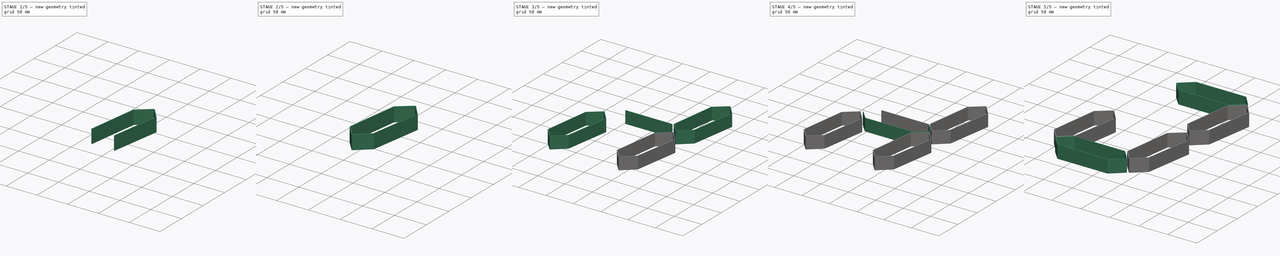
[diagram: build sequence overview — one tinted view per stage of 5, left to right]
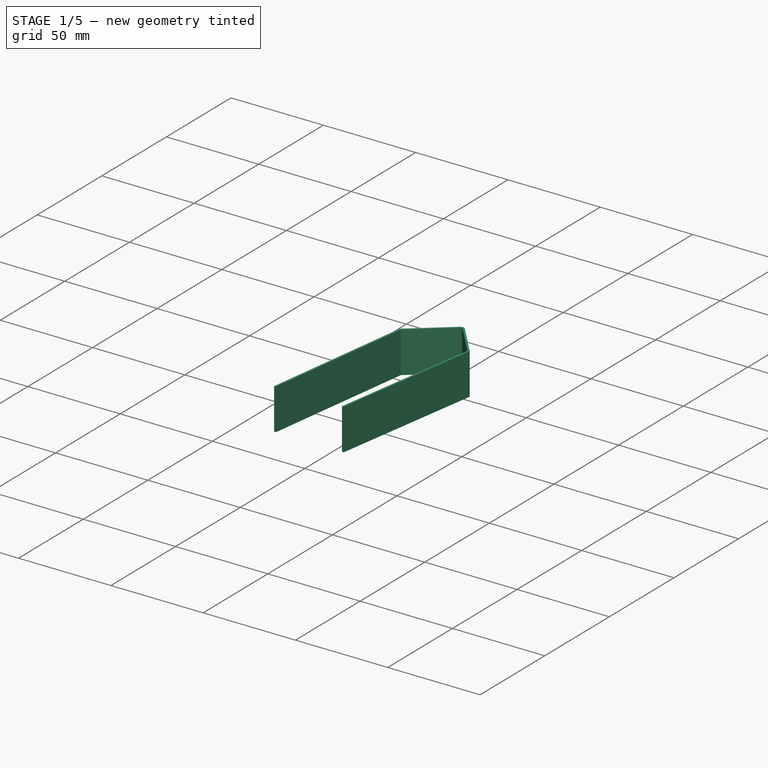
[diagram: stage 1 of 5 — iso view after this stage's code; geometry added in this stage tinted green]
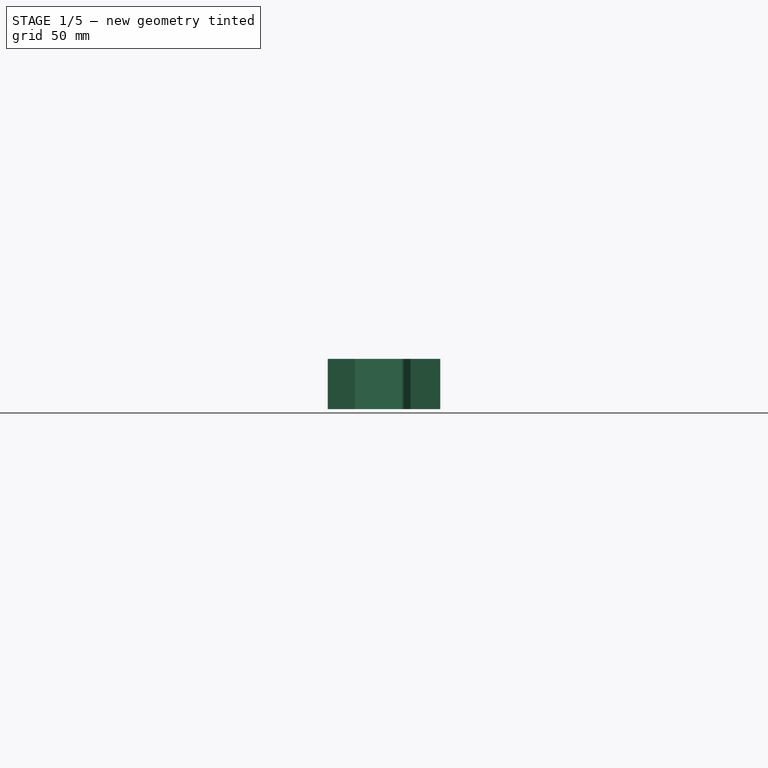
[diagram: stage 1 of 5 — front view after this stage's code; geometry added in this stage tinted green]
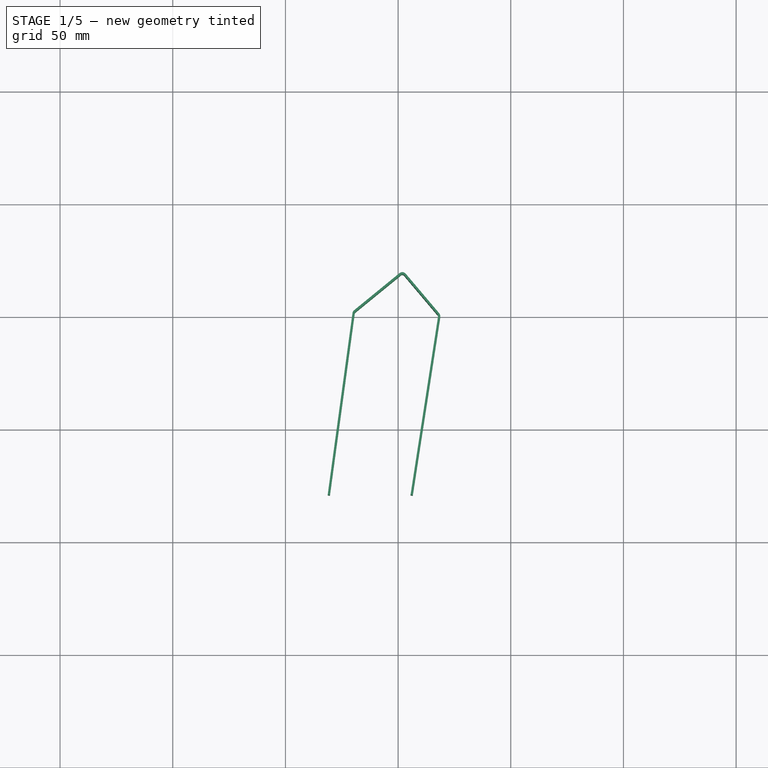
[diagram: stage 1 of 5 — top view after this stage's code; geometry added in this stage tinted green]
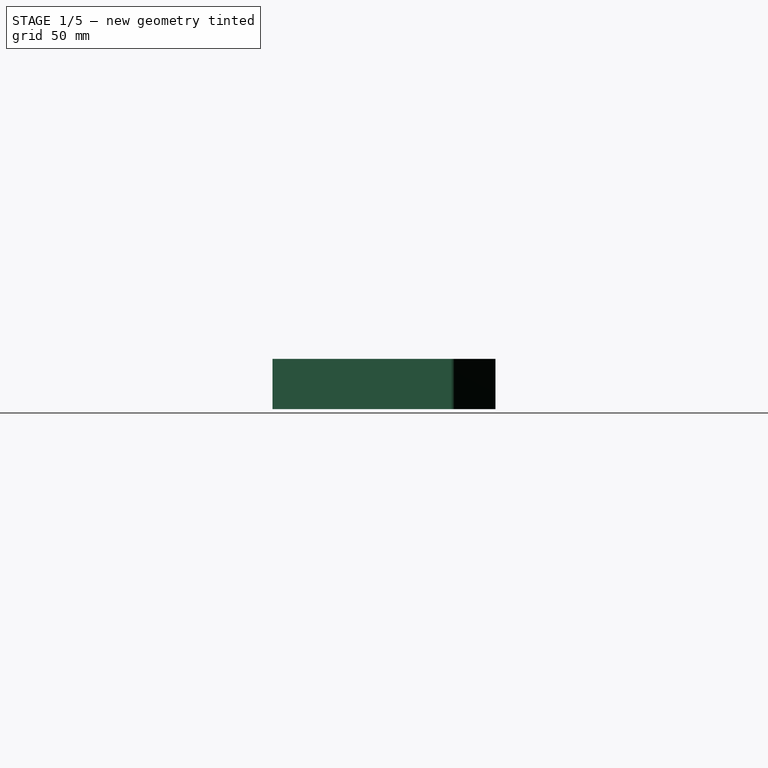
[diagram: stage 1 of 5 — right view after this stage's code; geometry added in this stage tinted green]
FCSTD DOCUMENT  (FreeCAD 0.19R17421 +113 (Git))
Label: afficheur2
License: All rights reserved
LicenseURL: http://en.wikipedia.org/wiki/All_rights_reserved
objects: PartDesign::FeaturePython×12, PartDesign::Body×7, PartDesign::FeatureBase×5, Part::Feature×3, Sketcher::SketchObject×2, PartDesign::Pad×2, App::DocumentObjectGroup×2, Image::ImagePlane×1
note: 33 computed .brp shape members not serialized (recipe doc carries the construction recipe); baked Part::Feature solids carry a one-line shape summary decoded from their .brp

FEATURE [PartDesign::Body] Body002  label="B"
  BaseFeature = -> Bend005
  Group = -> [Clone002]
  Origin = -> Origin002
  Tip = -> Clone002
FEATURE [App::DocumentObjectGroup] Group  label="Horizontal grp"
  Group = -> [Body,Body001,Body002]
FEATURE [Sketcher::SketchObject] Sketch001
  MapMode = 5
  Support = -> [XY_Plane003]
  sketch-geometry (4):
    g0: LineSegment StartX=-70.2446 StartY=101.535 StartZ=0 EndX=-69.2538 EndY=101.4 EndZ=0
    g1: LineSegment StartX=-69.2538 StartY=101.4 StartZ=0 EndX=-80.2521 EndY=20.8003 EndZ=0
    g2: LineSegment StartX=-80.2521 StartY=20.8003 StartZ=0 EndX=-81.2429 EndY=20.9355 EndZ=0
    g3: LineSegment StartX=-81.2429 StartY=20.9355 StartZ=0 EndX=-70.2446 EndY=101.535 EndZ=0
  constraints (8):
    c: Coincident(g0,g1)
    c: Coincident(g1,g2)
    c: Coincident(g2,g3)
    c: Coincident(g3,g0)
    c: Equal(g1,g3)
    c: Angle(g3,g0) = 1.5708
    c: Equal(g0,g2)
    c: Distance(g0) = 1
FEATURE [PartDesign::Pad] Pad002
  Length = 22.3
  Length2 = 100
  Profile = -> Sketch001
  Type = 0
FEATURE [PartDesign::FeaturePython] Bend006  # WARN: FeaturePython — macro-defined, semantics opaque (R4)
  AutoMiter = true
  BaseFeature = -> Pad002
  BendType = 0
  LengthList = [26]
  ReliefFactor = 0.7
  UseReliefFactor = false
  angle = 43
  baseObject = -> Pad002 [Face1]
  bendAList = [43]
  extend1 = 0
  extend2 = 0
  gap1 = 0
  gap2 = 0
  invert = false
  kfactor = 0.5
  length = 26
  miterangle1 = 0
  miterangle2 = 0
  offset = 0
  radius = 1
  reliefType = 0
  reliefd = 1
  reliefw = 0.8
  sketchflip = false
  sketchinvert = false
  unfold = false
FEATURE [PartDesign::FeaturePython] Bend007  # WARN: FeaturePython — macro-defined, semantics opaque (R4)
  AutoMiter = true
  BaseFeature = -> Bend006
  BendType = 0
  LengthList = [23]
  ReliefFactor = 0.7
  UseReliefFactor = false
  angle = 89
  baseObject = -> Bend006 [Face3]
  bendAList = [89]
  extend1 = 0
  extend2 = 0
  gap1 = 0
  gap2 = 0
  invert = false
  kfactor = 0.5
  length = 23
  miterangle1 = 0
  miterangle2 = 0
  offset = 0
  radius = 1
  reliefType = 0
  reliefd = 1
  reliefw = 0.8
  sketchflip = false
  sketchinvert = false
  unfold = false
FEATURE [PartDesign::FeaturePython] Bend008  # WARN: FeaturePython — macro-defined, semantics opaque (R4)
  AutoMiter = true
  BaseFeature = -> Bend007
  BendType = 0
  LengthList = [80]
  ReliefFactor = 0.7
  UseReliefFactor = false
  angle = 49
  baseObject = -> Bend007 [Face3]
  bendAList = [49]
  extend1 = 0
  extend2 = 0
  gap1 = 0
  gap2 = 0
  invert = false
  kfactor = 0.5
  length = 80
  miterangle1 = 0
  miterangle2 = 0
  offset = 0
  radius = 1
  reliefType = 0
  reliefd = 1
  reliefw = 0.8
  sketchflip = false
  sketchinvert = false
  unfold = false
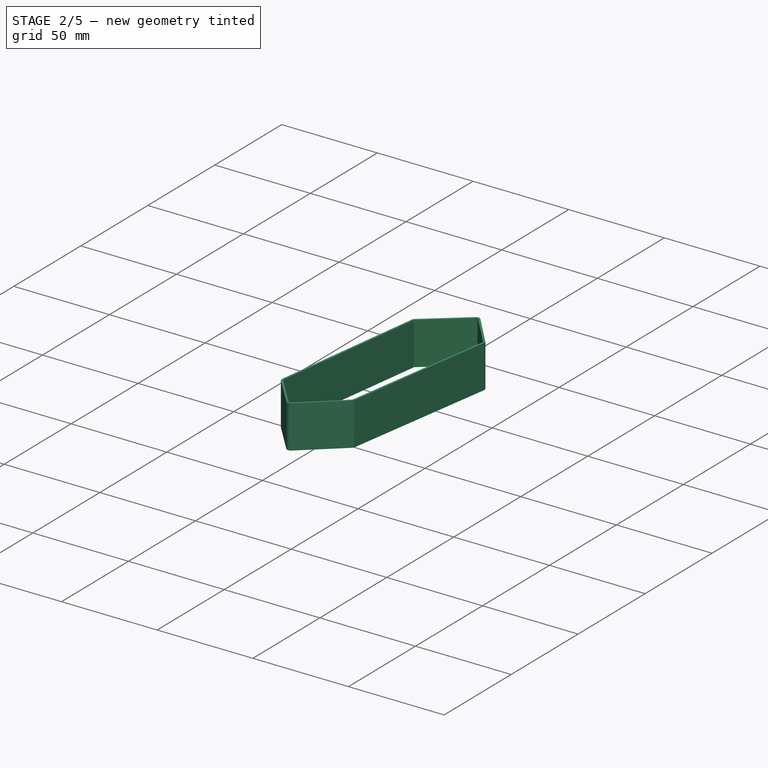
[diagram: stage 2 of 5 — iso view after this stage's code; geometry added in this stage tinted green]
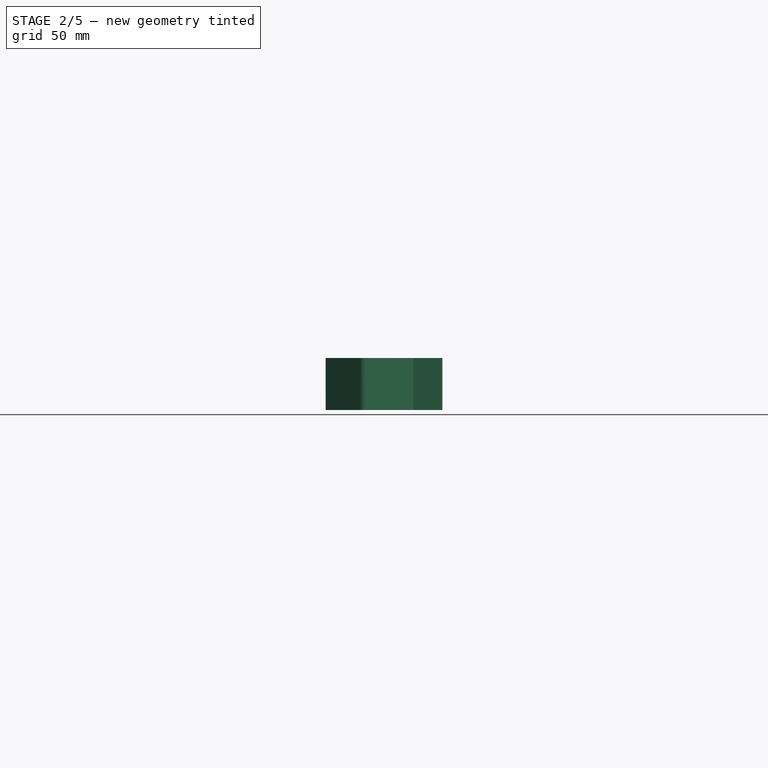
[diagram: stage 2 of 5 — front view after this stage's code; geometry added in this stage tinted green]
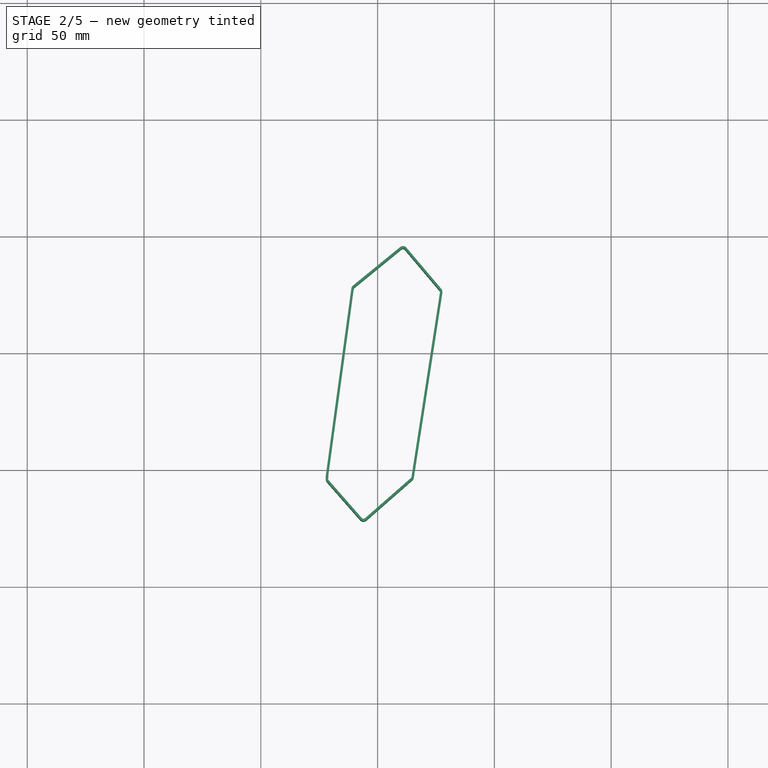
[diagram: stage 2 of 5 — top view after this stage's code; geometry added in this stage tinted green]
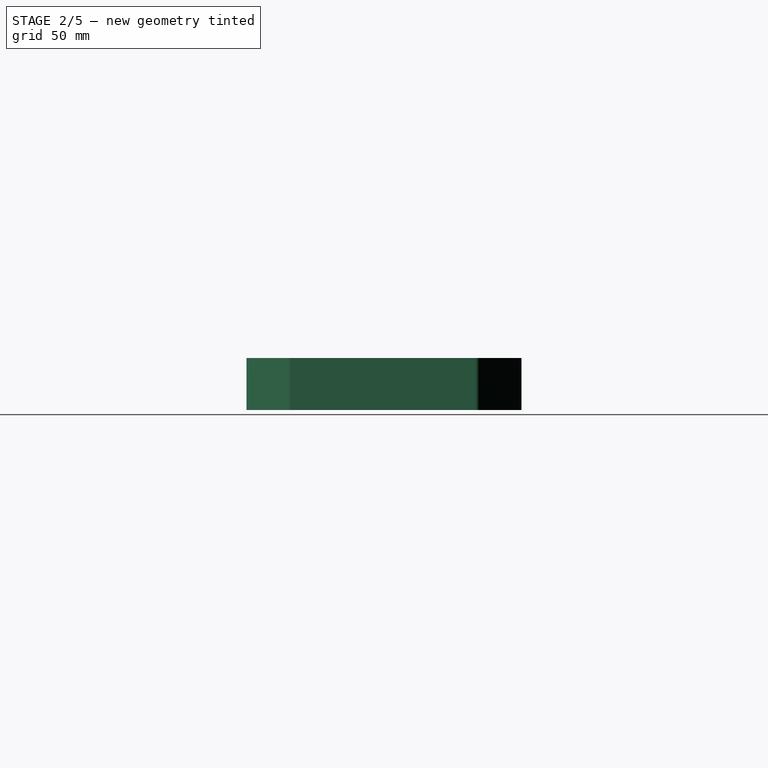
[diagram: stage 2 of 5 — right view after this stage's code; geometry added in this stage tinted green]
FEATURE [PartDesign::FeaturePython] Bend009  # WARN: FeaturePython — macro-defined, semantics opaque (R4)
  AutoMiter = true
  BaseFeature = -> Bend008
  BendType = 0
  LengthList = [26]
  ReliefFactor = 0.7
  UseReliefFactor = false
  angle = 40
  baseObject = -> Bend008 [Face3]
  bendAList = [40]
  extend1 = 0
  extend2 = 0
  gap1 = 0
  gap2 = 0
  invert = false
  kfactor = 0.5
  length = 26
  miterangle1 = 0
  miterangle2 = 0
  offset = 0
  radius = 1
  reliefType = 0
  reliefd = 1
  reliefw = 0.8
  sketchflip = false
  sketchinvert = false
  unfold = false
FEATURE [PartDesign::FeaturePython] Bend010  # WARN: FeaturePython — macro-defined, semantics opaque (R4)
  AutoMiter = true
  BaseFeature = -> Bend009
  BendType = 0
  LengthList = [21.5]
  ReliefFactor = 0.7
  UseReliefFactor = false
  angle = 90
  baseObject = -> Bend009 [Face3]
  bendAList = [90]
  extend1 = 0
  extend2 = 0
  gap1 = 0
  gap2 = 0
  invert = false
  kfactor = 0.5
  length = 21.5
  miterangle1 = 0
  miterangle2 = 0
  offset = 0
  radius = 1
  reliefType = 0
  reliefd = 1
  reliefw = 0.8
  sketchflip = false
  sketchinvert = false
  unfold = false
FEATURE [PartDesign::FeaturePython] Bend011  # WARN: FeaturePython — macro-defined, semantics opaque (R4)
  AutoMiter = true
  BaseFeature = -> Bend010
  BendType = 0
  LengthList = [1]
  ReliefFactor = 0.7
  UseReliefFactor = false
  angle = 48
  baseObject = -> Bend010 [Face3]
  bendAList = [48]
  extend1 = 0
  extend2 = 0
  gap1 = 0
  gap2 = 0
  invert = false
  kfactor = 0.5
  length = 1
  miterangle1 = 0
  miterangle2 = 0
  offset = 0
  radius = 1
  reliefType = 0
  reliefd = 1
  reliefw = 0.8
  sketchflip = false
  sketchinvert = false
  unfold = false
FEATURE [PartDesign::Body] Body005  label="BG"
  BaseFeature = -> Body003
  Group = -> [Clone004]
  Origin = -> Origin005
  Tip = -> Clone004
FEATURE [PartDesign::FeatureBase] Clone005
  BaseFeature = -> Body003
  Placement = pos=(109,-124,0) rot=(0,0,1;0rad)
FEATURE [PartDesign::Body] Body006  label="BD"
  BaseFeature = -> Body003
  Group = -> [Clone005]
  Origin = -> Origin006
  Tip = -> Clone005
FEATURE [App::DocumentObjectGroup] Group001  label="Vertical grp"
  Group = -> [Body003,Body004,Body005,Body006]
FEATURE [Part::Feature] FailedFace20_
  shape: bbox 3e-07 x 0.9885 x 22.3 mm, 1 faces, 0 solids (baked)
FEATURE [Part::Feature] FailedFace11_
  shape: bbox 0.08959 x 0.1031 x 22.3 mm, 1 faces, 0 solids (baked)
FEATURE [Part::Feature] FailedFace11_001
  shape: bbox 0.08959 x 0.1031 x 22.3 mm, 1 faces, 0 solids (baked)
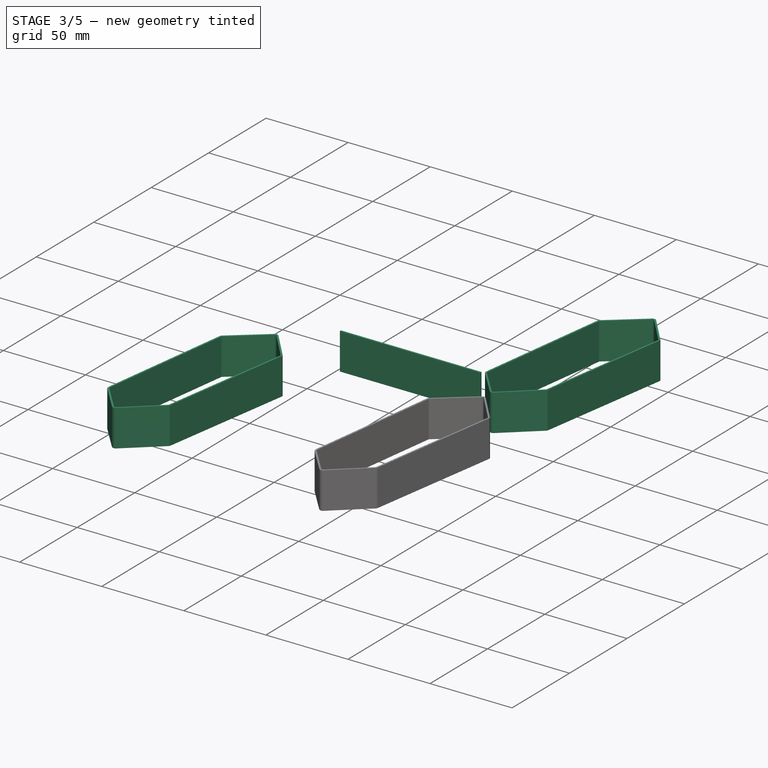
[diagram: stage 3 of 5 — iso view after this stage's code; geometry added in this stage tinted green]
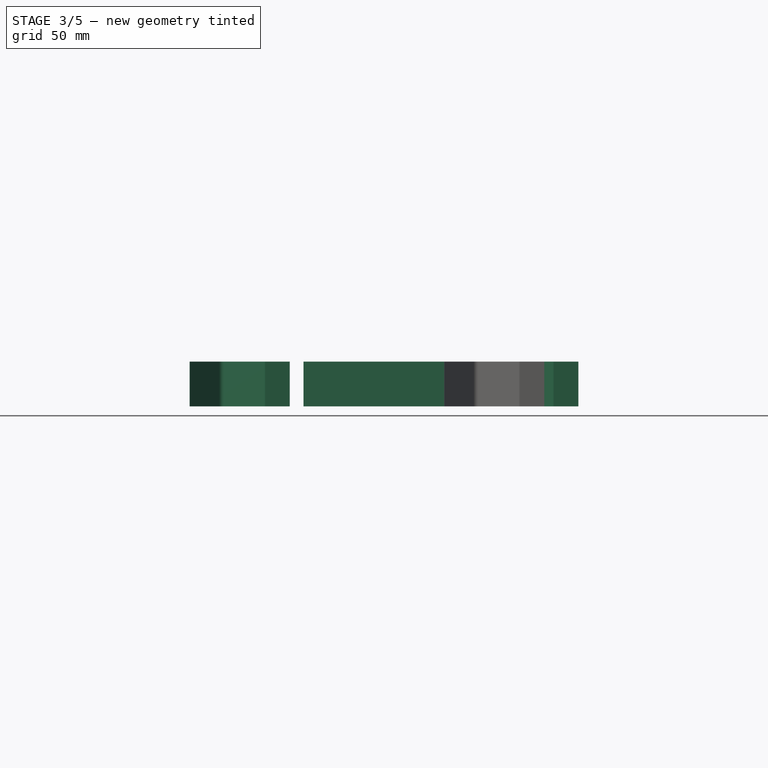
[diagram: stage 3 of 5 — front view after this stage's code; geometry added in this stage tinted green]
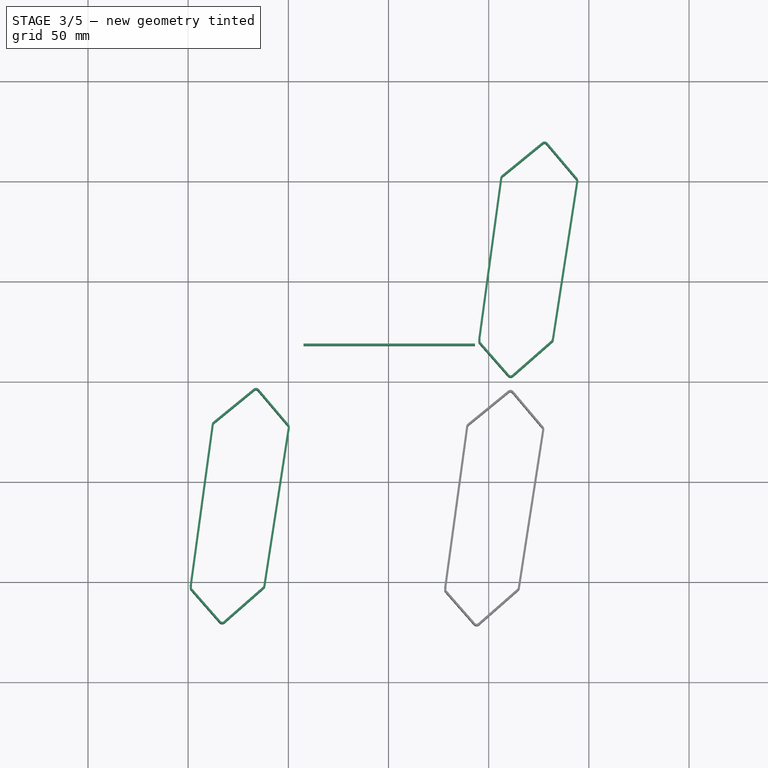
[diagram: stage 3 of 5 — top view after this stage's code; geometry added in this stage tinted green]
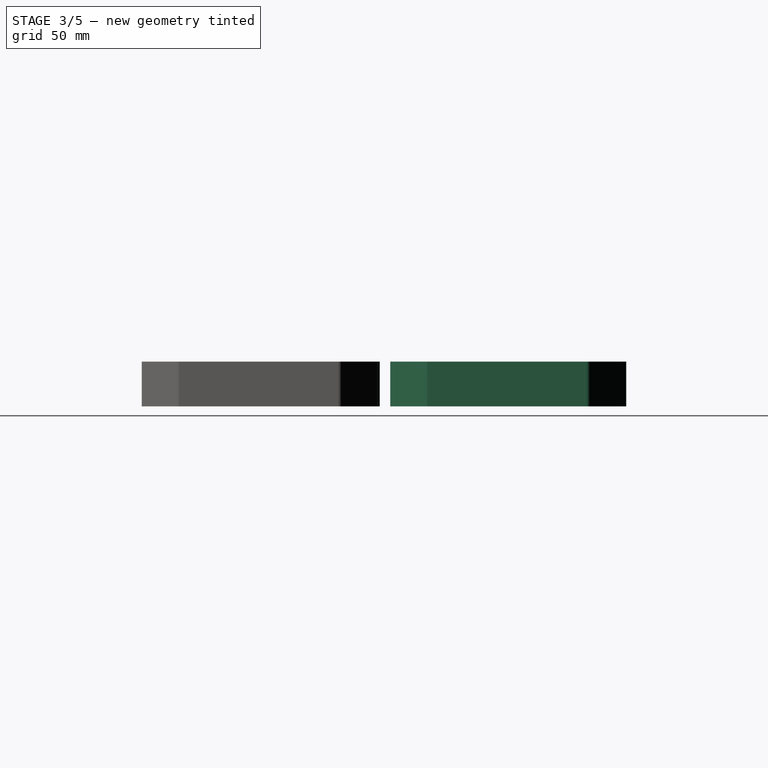
[diagram: stage 3 of 5 — right view after this stage's code; geometry added in this stage tinted green]
FEATURE [Image::ImagePlane] ImagePlane
  XSize = 210
  YSize = 297
FEATURE [Sketcher::SketchObject] Sketch
  MapMode = 5
  Support = -> [XY_Plane]
  sketch-geometry (4):
    g0: LineSegment StartX=-42.4215 StartY=18.8432 StartZ=0 EndX=43.15 EndY=18.8432 EndZ=0
    g1: LineSegment StartX=43.15 StartY=18.8432 StartZ=0 EndX=43.15 EndY=17.8432 EndZ=0
    g2: LineSegment StartX=43.15 StartY=17.8432 StartZ=0 EndX=-42.4215 EndY=17.8432 EndZ=0
    g3: LineSegment StartX=-42.4215 StartY=17.8432 StartZ=0 EndX=-42.4215 EndY=18.8432 EndZ=0
  constraints (9):
    c: Coincident(g0,g1)
    c: Coincident(g1,g2)
    c: Coincident(g2,g3)
    c: Coincident(g3,g0)
    c: Horizontal(g0)
    c: Horizontal(g2)
    c: Vertical(g1)
    c: Vertical(g3)
    c: DistanceY(g1,g1) = 1
FEATURE [PartDesign::Pad] Pad001
  Length = 22.3
  Length2 = 100
  Profile = -> Sketch
  Type = 0
FEATURE [PartDesign::Body] Body003  label="HG"
  Group = -> [Sketch001,Pad002,Bend006,Bend007,Bend008,Bend009,Bend010,Bend011]
  Origin = -> Origin003
  Tip = -> Bend011
FEATURE [PartDesign::FeatureBase] Clone003
  BaseFeature = -> Body003
  Placement = pos=(126,0,0) rot=(0,0,1;0rad)
FEATURE [PartDesign::Body] Body004  label="HD"
  BaseFeature = -> Body003
  Group = -> [Clone003]
  Origin = -> Origin004
  Tip = -> Clone003
FEATURE [PartDesign::FeatureBase] Clone004
  BaseFeature = -> Body003
  Placement = pos=(-18,-123,0) rot=(0,0,1;0rad)
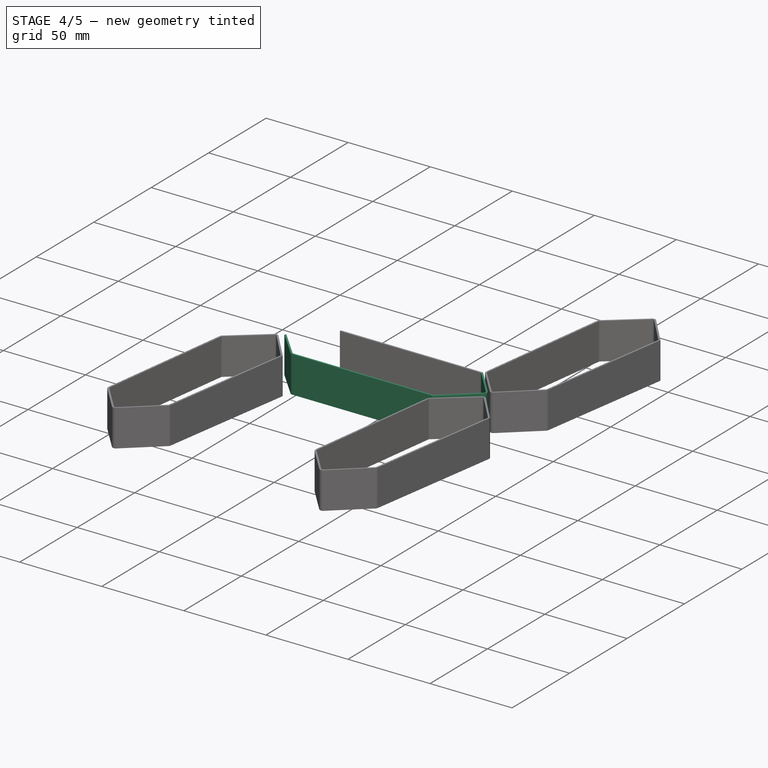
[diagram: stage 4 of 5 — iso view after this stage's code; geometry added in this stage tinted green]
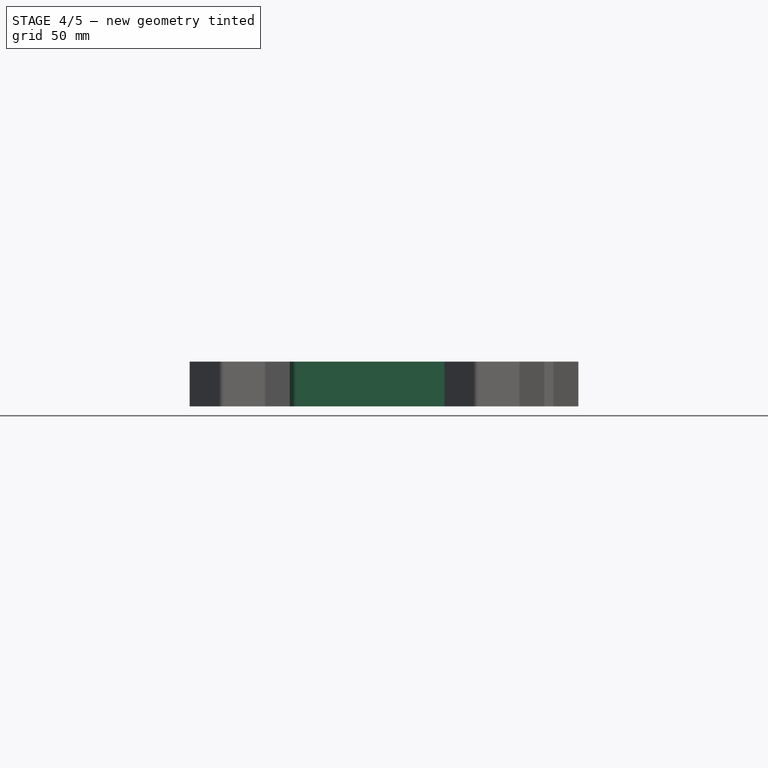
[diagram: stage 4 of 5 — front view after this stage's code; geometry added in this stage tinted green]
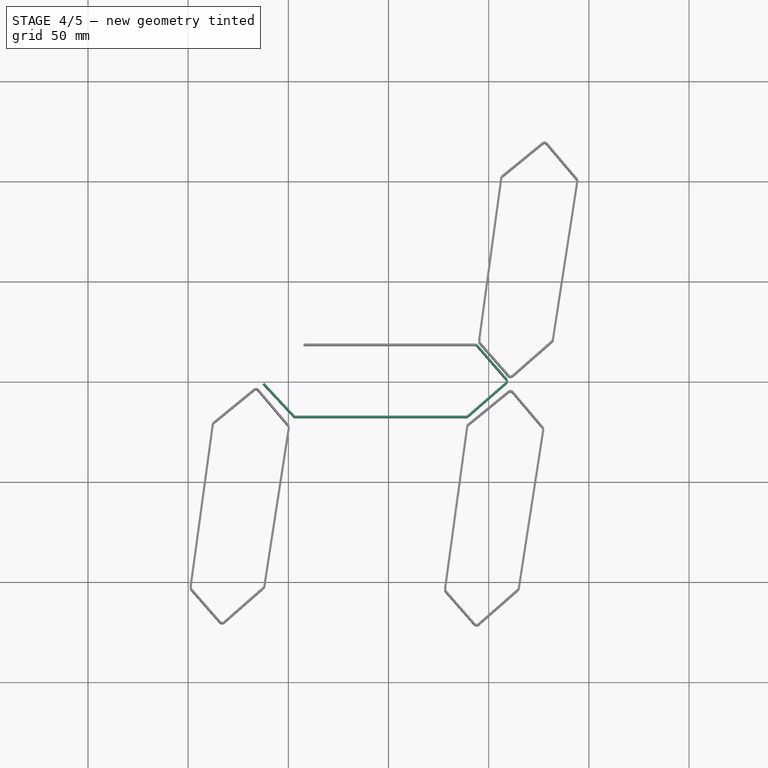
[diagram: stage 4 of 5 — top view after this stage's code; geometry added in this stage tinted green]
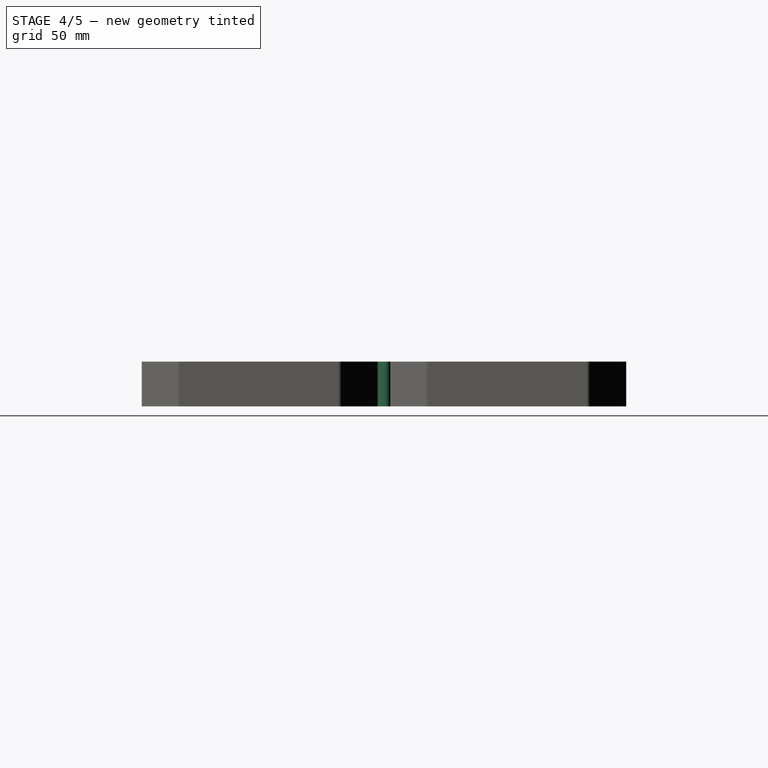
[diagram: stage 4 of 5 — right view after this stage's code; geometry added in this stage tinted green]
FEATURE [PartDesign::FeaturePython] Bend  # WARN: FeaturePython — macro-defined, semantics opaque (R4)
  AutoMiter = true
  BaseFeature = -> Pad001
  BendType = 0
  LengthList = [22]
  ReliefFactor = 0.7
  UseReliefFactor = false
  angle = 49
  baseObject = -> Pad001 [Face2]
  bendAList = [49]
  extend1 = 0
  extend2 = 0
  gap1 = 0
  gap2 = 0
  invert = false
  kfactor = 0.5
  length = 22
  miterangle1 = 0
  miterangle2 = 0
  offset = 0
  radius = 1
  reliefType = 0
  reliefd = 1
  reliefw = 0.8
  sketchflip = false
  sketchinvert = false
  unfold = false
FEATURE [PartDesign::FeaturePython] Bend001  # WARN: FeaturePython — macro-defined, semantics opaque (R4)
  AutoMiter = true
  BaseFeature = -> Bend
  BendType = 0
  LengthList = [25]
  ReliefFactor = 0.7
  UseReliefFactor = false
  angle = 90
  baseObject = -> Bend [Face3]
  bendAList = [90]
  extend1 = 0
  extend2 = 0
  gap1 = 0
  gap2 = 0
  invert = false
  kfactor = 0.5
  length = 25
  miterangle1 = 0
  miterangle2 = 0
  offset = 0
  radius = 1
  reliefType = 0
  reliefd = 1
  reliefw = 0.8
  sketchflip = false
  sketchinvert = false
  unfold = false
FEATURE [PartDesign::FeaturePython] Bend002  # WARN: FeaturePython — macro-defined, semantics opaque (R4)
  AutoMiter = true
  BaseFeature = -> Bend001
  BendType = 0
  LengthList = [85]
  ReliefFactor = 0.7
  UseReliefFactor = false
  angle = 41
  baseObject = -> Bend001 [Face3]
  bendAList = [41]
  extend1 = 0
  extend2 = 0
  gap1 = 0
  gap2 = 0
  invert = false
  kfactor = 0.5
  length = 85
  miterangle1 = 0
  miterangle2 = 0
  offset = 0
  radius = 1
  reliefType = 0
  reliefd = 1
  reliefw = 0.8
  sketchflip = false
  sketchinvert = false
  unfold = false
FEATURE [PartDesign::FeaturePython] Bend003  # WARN: FeaturePython — macro-defined, semantics opaque (R4)
  AutoMiter = true
  BaseFeature = -> Bend002
  BendType = 0
  LengthList = [22]
  ReliefFactor = 0.7
  UseReliefFactor = false
  angle = 47
  baseObject = -> Bend002 [Face3]
  bendAList = [47]
  extend1 = 0
  extend2 = 0
  gap1 = 0
  gap2 = 0
  invert = false
  kfactor = 0.5
  length = 22
  miterangle1 = 0
  miterangle2 = 0
  offset = 0
  radius = 1
  reliefType = 0
  reliefd = 1
  reliefw = 0.8
  sketchflip = false
  sketchinvert = false
  unfold = false
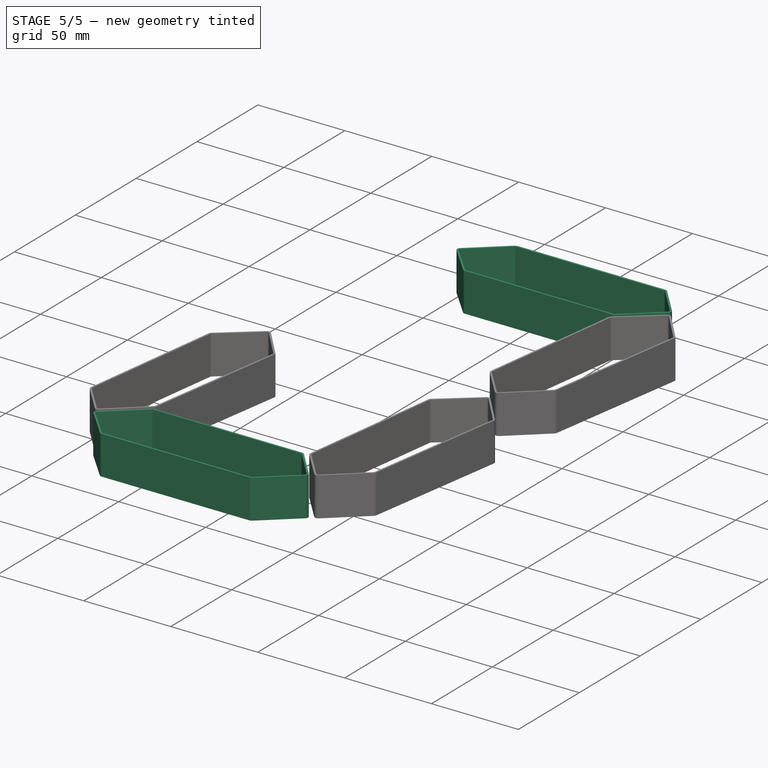
[diagram: stage 5 of 5 — iso view after this stage's code; geometry added in this stage tinted green]
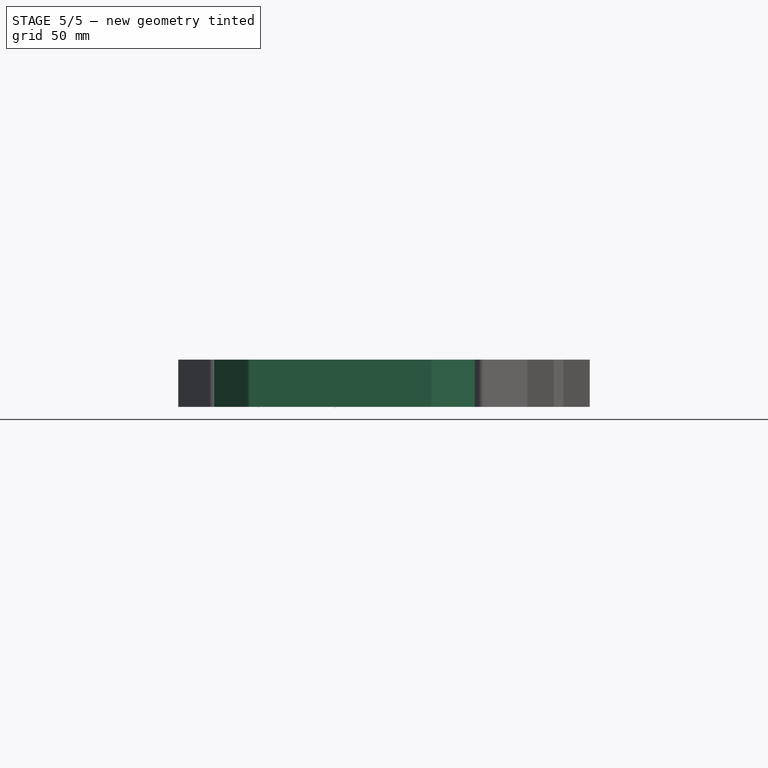
[diagram: stage 5 of 5 — front view after this stage's code; geometry added in this stage tinted green]
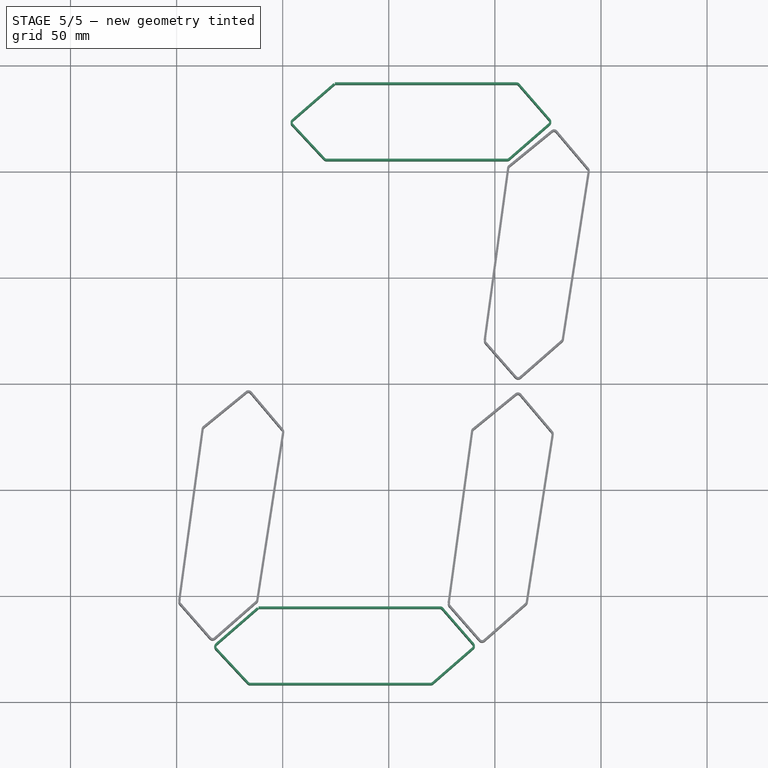
[diagram: stage 5 of 5 — top view after this stage's code; geometry added in this stage tinted green]
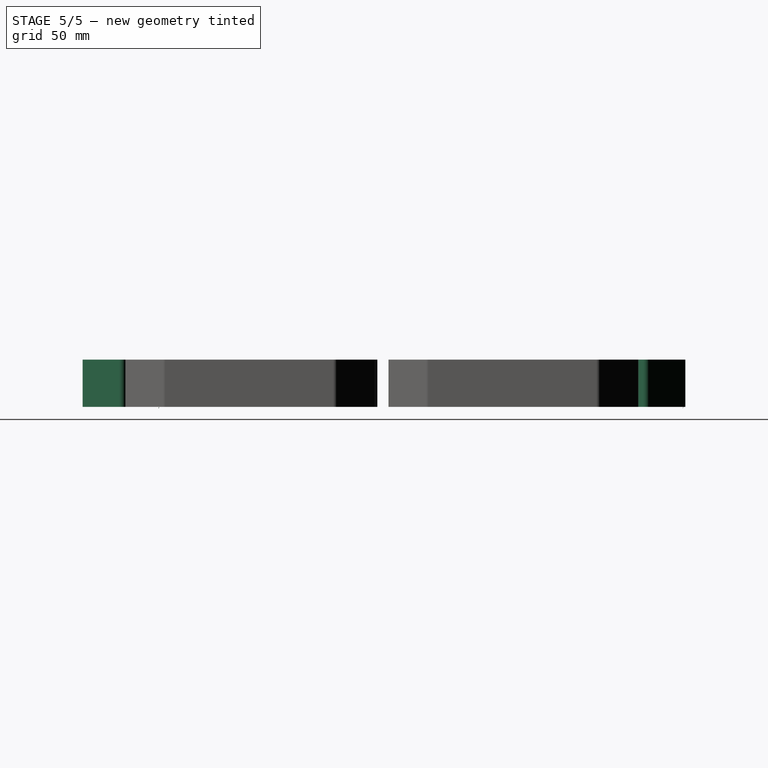
[diagram: stage 5 of 5 — right view after this stage's code; geometry added in this stage tinted green]
FEATURE [PartDesign::FeaturePython] Bend004  # WARN: FeaturePython — macro-defined, semantics opaque (R4)
  AutoMiter = true
  BaseFeature = -> Bend003
  BendType = 0
  LengthList = [26]
  ReliefFactor = 0.7
  UseReliefFactor = false
  angle = 92
  baseObject = -> Bend003 [Face3]
  bendAList = [92]
  extend1 = 0
  extend2 = 0
  gap1 = 0
  gap2 = 0
  invert = false
  kfactor = 0.5
  length = 26
  miterangle1 = 0
  miterangle2 = 0
  offset = 0
  radius = 1
  reliefType = 0
  reliefd = 1
  reliefw = 0.8
  sketchflip = false
  sketchinvert = false
  unfold = false
FEATURE [PartDesign::FeaturePython] Bend005  # WARN: FeaturePython — macro-defined, semantics opaque (R4)
  AutoMiter = true
  BaseFeature = -> Bend004
  BendType = 3
  LengthList = [0.1]
  ReliefFactor = 0.7
  UseReliefFactor = false
  angle = 40
  baseObject = -> Bend004 [Face3]
  bendAList = [40]
  extend1 = 0
  extend2 = 0
  gap1 = 0
  gap2 = 0
  invert = false
  kfactor = 0
  length = 0.1
  miterangle1 = 0
  miterangle2 = 0
  offset = 0
  radius = 1
  reliefType = 0
  reliefd = 1
  reliefw = 0.8
  sketchflip = false
  sketchinvert = false
  unfold = false
FEATURE [PartDesign::Body] Body  label="M"
  Group = -> [Sketch,Pad001,Bend,Bend001,Bend002,Bend003,Bend004,Bend005]
  Origin = -> Origin
  Tip = -> Bend005
FEATURE [PartDesign::FeatureBase] Clone001
  BaseFeature = -> Bend005
  Placement = pos=(17,123,0) rot=(0,0,1;0rad)
FEATURE [PartDesign::Body] Body001  label="H"
  BaseFeature = -> Bend005
  Group = -> [Clone001]
  Origin = -> Origin001
  Tip = -> Clone001
FEATURE [PartDesign::FeatureBase] Clone002
  BaseFeature = -> Bend005
  Placement = pos=(-19,-124,0) rot=(0,0,1;0rad)
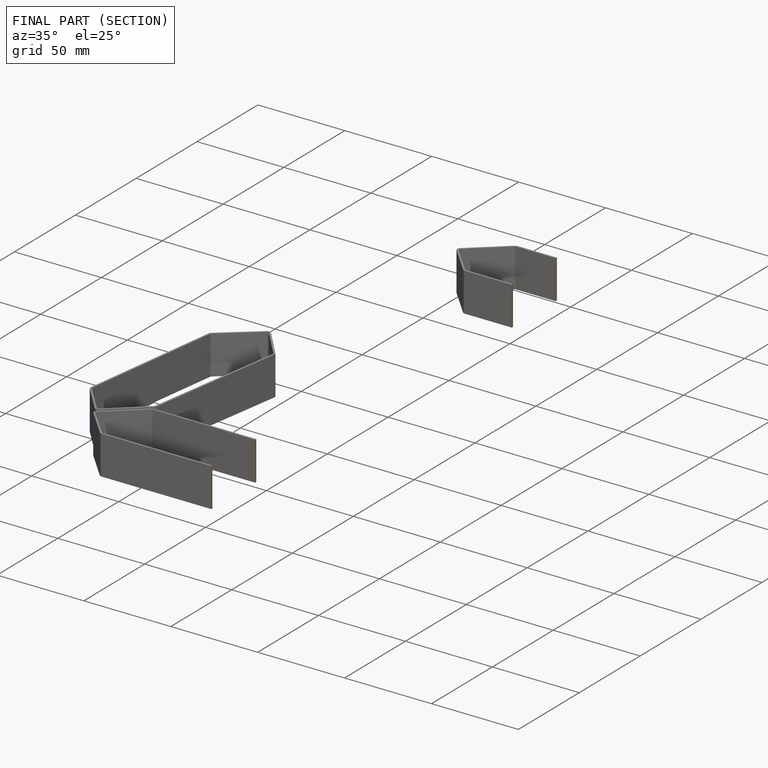
[diagram: finished part — half-section view (interior)]
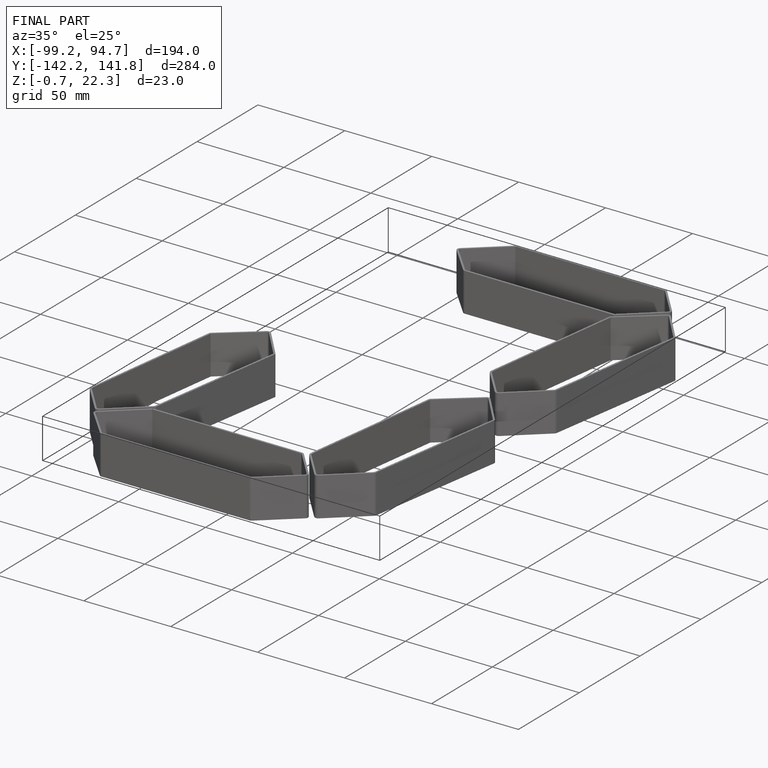
[diagram: finished part — iso view with bounding-box wireframe]
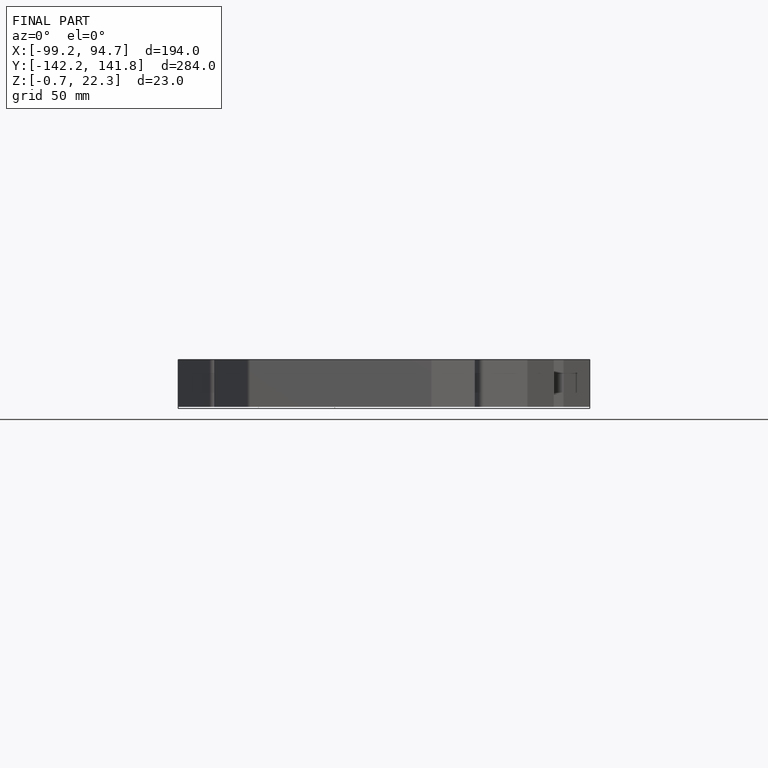
[diagram: finished part — front view with bounding-box wireframe]
